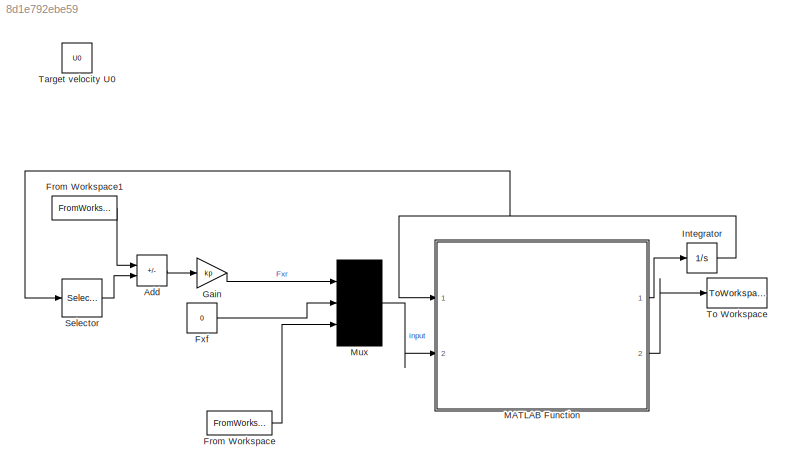
MODEL slx_8d1e792ebe59
KIND model
CONFIG AbsTol = auto
CONFIG EnableMultiTasking = on
CONFIG FixedStep = auto
CONFIG MaxStep = auto
CONFIG MinStep = auto
CONFIG RelTol = 1e-3
CONFIG SampleTimeConstraint = Unconstrained
CONFIG Solver = ode45
CONFIG SolverName = ode45
CONFIG StartTime = 0.0
CONFIG StopTime = 8
BLOCK [Sum] Add
  IconShape = rectangular
  Inputs = +-
  Ports = [2, 1]
BLOCK [FromWorkspace] From Workspace
  OutputAfterFinalValue = Holding final value
  SampleTime = Ts
  VariableName = in_delta
BLOCK [FromWorkspace] From Workspace1
  SampleTime = Ts
  VariableName = ref_vel
BLOCK [Constant] Fxf
  Value = 0
BLOCK [Gain] Gain
  Gain = kp
BLOCK [Integrator] Integrator
  Ports = [1, 1]
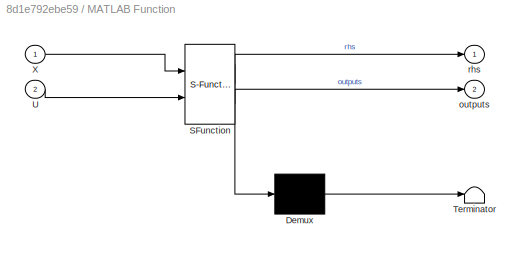
BLOCK [SubSystem] MATLAB Function
  ErrorFcn = Stateflow.Translate.translate
  PermitHierarchicalResolution = ExplicitOnly
  Ports = [2, 2]
  RequestExecContextInheritance = off
  SFBlockType = MATLAB Function
  TreatAsAtomicUnit = on
BLOCK [Demux] MATLAB Function/ Demux 
  Outputs = 1
  Ports = [1, 1]
BLOCK [S-Function] MATLAB Function/ SFunction 
  EnableBusSupport = on
  FunctionName = sf_sfun
  Parameters = data
  PortCounts = [2 3]
  Ports = [2, 3]
  SFcnIsStateOwnerBlock = off
  SFunctionDeploymentMode = off
  Tag = Stateflow S-Function 2
BLOCK [Terminator] MATLAB Function/ Terminator 
BLOCK [Inport] MATLAB Function/U
  Port = 2
BLOCK [Inport] MATLAB Function/X
BLOCK [Outport] MATLAB Function/outputs
  Port = 2
BLOCK [Outport] MATLAB Function/rhs
BLOCK [Mux] Mux
  DisplayOption = signals
  Inputs = 3
  Ports = [3, 1]
BLOCK [Selector] Selector
  IndexOptions = Index vector (dialog)
  Indices = [4]
  InputPortWidth = 6
  OutputSizes = 1
  Ports = [1, 1]
BLOCK [Constant] Target velocity U0
  Commented = on
  Value = U0
BLOCK [ToWorkspace] To Workspace
  MaxDataPoints = inf
  Ports = [1]
  SampleTime = -1
  VariableName = outputs
LINE Add:1 -> Gain:1
LINE From Workspace1:1 -> Add:1
LINE From Workspace:1 -> Mux:3
LINE Fxf:1 -> Mux:2
LINE Gain:1 -> Mux:1
NET Integrator:1 -> MATLAB Function:1, Selector:1
LINE MATLAB Function:1 -> Integrator:1
LINE MATLAB Function:2 -> To Workspace:1
LINE Mux:1 -> MATLAB Function:2
LINE Selector:1 -> Add:2
note: NET lines group one-source signal fan-out (src -> all destinations, sorted); 1:1 wires keep LINE
CHART MATLAB Function states=1 transitions=1
  STATE_LABEL 'eML_blk_kernel()'
  STATE_LABEL 'SCRIPT:\nfunction [rhs, outputs] = single_track_dynamics(X,U,data)\n  \n%   %extract data\n  g     = data.gravity;\n  M     = data.mass;\n  Iz    = data.Iz;\n  L__r  = data.Lr;\n  L__f  = data.Lf;\n  k__v  = data.kv;\n  h     = data.h;\n  %\n  Byr = data.Byr;\n  Cyr = data.Cyr;\n  Dyr = data.Dyr;\n  Eyr = data.Eyr;\n  Kyr = data.Kyr;\n  \n  Byf = data.Byf;\n  Cyf = data.Cyf;\n  Dyf = data.Dyf;\n  Eyf = data.Eyf;\n  Kyf...<+1685ch>'
CHART  states=0 transitions=0
